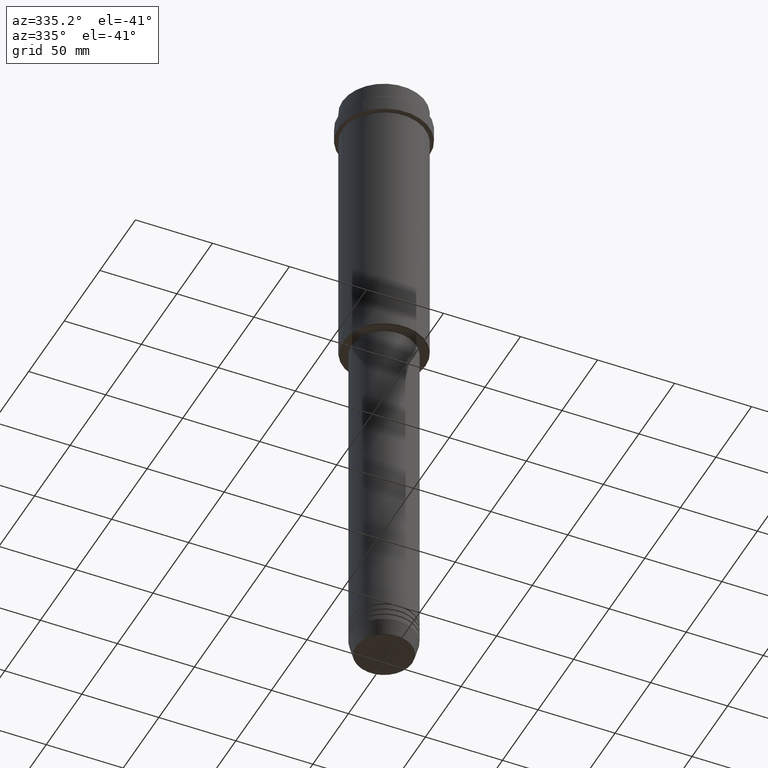
[diagram: clean part render]
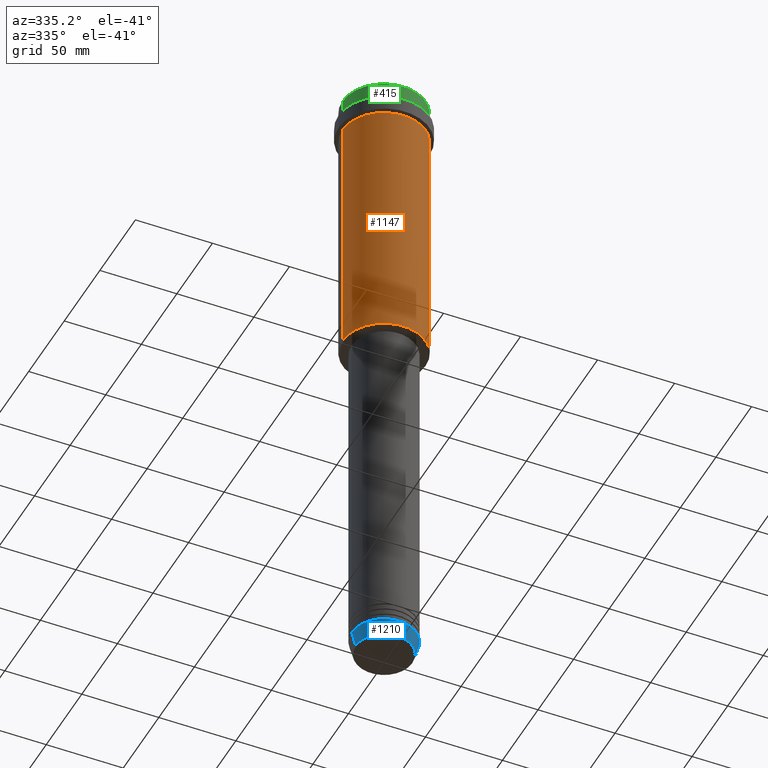
[diagram: same view with three faces highlighted in distinct colors, each labeled with its STEP entity id]
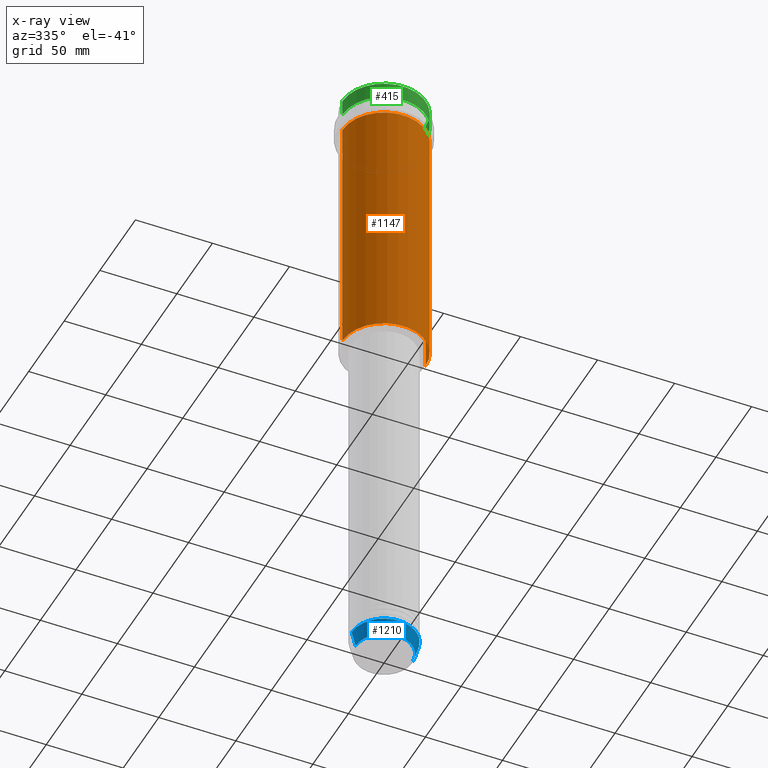
[diagram: x-ray of the same camera — body ghosted, the three highlighted faces saturated]
A machine part, auxiliary view with three faces highlighted in distinct colors.
The next image is the same camera in x-ray (body ghosted, the three faces saturated) — at least one of them is partly hidden behind the body in this view.
Their STEP definitions:

[orange] entity #1147 — the highlighted cylindrical surface (partial cylindrical patch) has radius 27 mm, axis along (-0, -0, 1).
#48 = DIRECTION ( 'NONE',  ( -0.000000000000000000, -0.000000000000000000, 1.000000000000000000 ) ) ;
#158 = CARTESIAN_POINT ( 'NONE',  ( -27.00000000000000355, 3.306546357697854128E-15, -187.5000000000000284 ) ) ;
#229 = CARTESIAN_POINT ( 'NONE',  ( 0.000000000000000000, 0.000000000000000000, 0.000000000000000000 ) ) ;
#239 = EDGE_CURVE ( 'NONE', #942, #1294, #1220, .T. ) ;
#294 = EDGE_LOOP ( 'NONE', ( #669, #822, #425, #713 ) ) ;
#318 = DIRECTION ( 'NONE',  ( -0.000000000000000000, -0.000000000000000000, 1.000000000000000000 ) ) ;
#425 = ORIENTED_EDGE ( 'NONE', *, *, #239, .T. ) ;
#440 = DIRECTION ( 'NONE',  ( -0.000000000000000000, -0.000000000000000000, 1.000000000000000000 ) ) ;
#491 = AXIS2_PLACEMENT_3D ( 'NONE', #1356, #48, #719 ) ;
#557 = EDGE_CURVE ( 'NONE', #861, #942, #863, .T. ) ;
#669 = ORIENTED_EDGE ( 'NONE', *, *, #1095, .F. ) ;
#713 = ORIENTED_EDGE ( 'NONE', *, *, #1233, .F. ) ;
#719 = DIRECTION ( 'NONE',  ( -1.000000000000000000, 0.000000000000000000, 0.000000000000000000 ) ) ;
#803 = VERTEX_POINT ( 'NONE', #1302 ) ;
#805 = CARTESIAN_POINT ( 'NONE',  ( 27.00000000000000355, 0.000000000000000000, -187.5000000000000284 ) ) ;
#807 = DIRECTION ( 'NONE',  ( -0.000000000000000000, -0.000000000000000000, 1.000000000000000000 ) ) ;
#822 = ORIENTED_EDGE ( 'NONE', *, *, #557, .T. ) ;
#859 = VECTOR ( 'NONE', #807, 1000.000000000000000 ) ;
#861 = VERTEX_POINT ( 'NONE', #158 ) ;
#863 = CIRCLE ( 'NONE', #491, 27.00000000000000355 ) ;
#867 = AXIS2_PLACEMENT_3D ( 'NONE', #1297, #318, #980 ) ;
#888 = VECTOR ( 'NONE', #1385, 1000.000000000000000 ) ;
#942 = VERTEX_POINT ( 'NONE', #805 ) ;
#980 = DIRECTION ( 'NONE',  ( 1.000000000000000000, 0.000000000000000000, 0.000000000000000000 ) ) ;
#1059 = CARTESIAN_POINT ( 'NONE',  ( -27.00000000000000355, 3.306546357697854128E-15, 0.000000000000000000 ) ) ;
#1073 = DIRECTION ( 'NONE',  ( 1.000000000000000000, 0.000000000000000000, 0.000000000000000000 ) ) ;
#1095 = EDGE_CURVE ( 'NONE', #861, #803, #1277, .T. ) ;
#1147 = ADVANCED_FACE ( 'NONE', ( #1412 ), #1183, .T. ) ;
#1183 = CYLINDRICAL_SURFACE ( 'NONE', #1205, 27.00000000000000355 ) ;
#1205 = AXIS2_PLACEMENT_3D ( 'NONE', #229, #440, #1073 ) ;
#1220 = LINE ( 'NONE', #1336, #859 ) ;
#1233 = EDGE_CURVE ( 'NONE', #803, #1294, #1273, .T. ) ;
#1248 = CARTESIAN_POINT ( 'NONE',  ( 27.00000000000000355, 0.000000000000000000, -23.00000000000001421 ) ) ;
#1273 = CIRCLE ( 'NONE', #867, 27.00000000000000355 ) ;
#1277 = LINE ( 'NONE', #1059, #888 ) ;
#1294 = VERTEX_POINT ( 'NONE', #1248 ) ;
#1297 = CARTESIAN_POINT ( 'NONE',  ( 0.000000000000000000, 0.000000000000000000, -23.00000000000001421 ) ) ;
#1302 = CARTESIAN_POINT ( 'NONE',  ( -27.00000000000000355, 3.306546357697854128E-15, -23.00000000000001421 ) ) ;
#1336 = CARTESIAN_POINT ( 'NONE',  ( 27.00000000000000355, 0.000000000000000000, 0.000000000000000000 ) ) ;
#1356 = CARTESIAN_POINT ( 'NONE',  ( 0.000000000000000000, 0.000000000000000000, -187.5000000000000284 ) ) ;
#1385 = DIRECTION ( 'NONE',  ( -0.000000000000000000, -0.000000000000000000, 1.000000000000000000 ) ) ;
#1412 = FACE_OUTER_BOUND ( 'NONE', #294, .T. ) ;

[blue] entity #1210 — the highlighted conical surface has half-angle 15 deg.
#52 = DIRECTION ( 'NONE',  ( 0.2588190451025211836, 0.000000000000000000, 0.9659258262890680902 ) ) ;
#71 = VERTEX_POINT ( 'NONE', #284 ) ;
#89 = CONICAL_SURFACE ( 'NONE', #711, 21.00000000000000000, 0.2617993877991499074 ) ;
#175 = CARTESIAN_POINT ( 'NONE',  ( 21.00000000000000000, 0.000000000000000000, -413.0000000000000000 ) ) ;
#284 = CARTESIAN_POINT ( 'NONE',  ( -21.00000000000000000, 2.571758278209441661E-15, -413.0000000000000000 ) ) ;
#295 = EDGE_CURVE ( 'NONE', #1154, #1035, #497, .T. ) ;
#302 = DIRECTION ( 'NONE',  ( 1.000000000000000000, 0.000000000000000000, 0.000000000000000000 ) ) ;
#306 = CARTESIAN_POINT ( 'NONE',  ( 0.000000000000000000, 0.000000000000000000, -422.6294095225512137 ) ) ;
#353 = VECTOR ( 'NONE', #661, 1000.000000000000114 ) ;
#406 = EDGE_CURVE ( 'NONE', #513, #1154, #416, .T. ) ;
#416 = CIRCLE ( 'NONE', #608, 18.41980749484383750 ) ;
#423 = DIRECTION ( 'NONE',  ( -0.000000000000000000, -0.000000000000000000, 1.000000000000000000 ) ) ;
#497 = LINE ( 'NONE', #175, #1176 ) ;
#513 = VERTEX_POINT ( 'NONE', #1354 ) ;
#551 = DIRECTION ( 'NONE',  ( 1.000000000000000000, 0.000000000000000000, 0.000000000000000000 ) ) ;
#590 = CIRCLE ( 'NONE', #613, 21.00000000000000000 ) ;
#592 = CARTESIAN_POINT ( 'NONE',  ( 0.000000000000000000, 0.000000000000000000, -413.0000000000000000 ) ) ;
#608 = AXIS2_PLACEMENT_3D ( 'NONE', #306, #423, #302 ) ;
#611 = ORIENTED_EDGE ( 'NONE', *, *, #295, .T. ) ;
#613 = AXIS2_PLACEMENT_3D ( 'NONE', #592, #816, #1217 ) ;
#661 = DIRECTION ( 'NONE',  ( -0.2588190451025211836, 3.169619151431770488E-17, 0.9659258262890680902 ) ) ;
#711 = AXIS2_PLACEMENT_3D ( 'NONE', #874, #879, #551 ) ;
#747 = ORIENTED_EDGE ( 'NONE', *, *, #1358, .F. ) ;
#751 = ORIENTED_EDGE ( 'NONE', *, *, #406, .T. ) ;
#816 = DIRECTION ( 'NONE',  ( -0.000000000000000000, -0.000000000000000000, 1.000000000000000000 ) ) ;
#874 = CARTESIAN_POINT ( 'NONE',  ( 0.000000000000000000, 0.000000000000000000, -413.0000000000000000 ) ) ;
#879 = DIRECTION ( 'NONE',  ( -0.000000000000000000, -0.000000000000000000, 1.000000000000000000 ) ) ;
#965 = CARTESIAN_POINT ( 'NONE',  ( 18.41980749484383750, 0.000000000000000000, -422.6294095225512137 ) ) ;
#973 = FACE_OUTER_BOUND ( 'NONE', #1027, .T. ) ;
#983 = CARTESIAN_POINT ( 'NONE',  ( -21.00000000000000000, 2.571758278209441661E-15, -413.0000000000000000 ) ) ;
#1027 = EDGE_LOOP ( 'NONE', ( #1268, #751, #611, #747 ) ) ;
#1033 = CARTESIAN_POINT ( 'NONE',  ( 21.00000000000000000, 0.000000000000000000, -413.0000000000000000 ) ) ;
#1035 = VERTEX_POINT ( 'NONE', #1033 ) ;
#1154 = VERTEX_POINT ( 'NONE', #965 ) ;
#1176 = VECTOR ( 'NONE', #52, 1000.000000000000114 ) ;
#1184 = EDGE_CURVE ( 'NONE', #513, #71, #1189, .T. ) ;
#1189 = LINE ( 'NONE', #983, #353 ) ;
#1210 = ADVANCED_FACE ( 'NONE', ( #973 ), #89, .T. ) ;
#1217 = DIRECTION ( 'NONE',  ( 1.000000000000000000, 0.000000000000000000, 0.000000000000000000 ) ) ;
#1268 = ORIENTED_EDGE ( 'NONE', *, *, #1184, .F. ) ;
#1354 = CARTESIAN_POINT ( 'NONE',  ( -18.41980749484383750, 2.413767053578267458E-15, -422.6294095225512137 ) ) ;
#1358 = EDGE_CURVE ( 'NONE', #71, #1035, #590, .T. ) ;

[green] entity #415 — the highlighted cylindrical surface (partial cylindrical patch) has radius 27 mm, axis along (-0, -0, 1).
#25 = CARTESIAN_POINT ( 'NONE',  ( 27.00000000000000355, 0.000000000000000000, 0.000000000000000000 ) ) ;
#61 = ORIENTED_EDGE ( 'NONE', *, *, #899, .T. ) ;
#66 = CARTESIAN_POINT ( 'NONE',  ( 0.000000000000000000, 0.000000000000000000, -0.4999999999999796274 ) ) ;
#67 = VERTEX_POINT ( 'NONE', #70 ) ;
#70 = CARTESIAN_POINT ( 'NONE',  ( -27.00000000000000355, 3.306546357697854128E-15, -0.4999999999999796274 ) ) ;
#198 = ORIENTED_EDGE ( 'NONE', *, *, #1389, .T. ) ;
#206 = DIRECTION ( 'NONE',  ( -0.000000000000000000, -0.000000000000000000, 1.000000000000000000 ) ) ;
#231 = CARTESIAN_POINT ( 'NONE',  ( -27.00000000000000355, 3.306546357697854128E-15, -11.00000000000000178 ) ) ;
#258 = CARTESIAN_POINT ( 'NONE',  ( 0.000000000000000000, 0.000000000000000000, -11.00000000000000178 ) ) ;
#292 = AXIS2_PLACEMENT_3D ( 'NONE', #258, #1204, #1209 ) ;
#307 = ORIENTED_EDGE ( 'NONE', *, *, #599, .T. ) ;
#362 = DIRECTION ( 'NONE',  ( -0.000000000000000000, -0.000000000000000000, 1.000000000000000000 ) ) ;
#370 = LINE ( 'NONE', #1017, #732 ) ;
#415 = ADVANCED_FACE ( 'NONE', ( #878 ), #860, .T. ) ;
#457 = CARTESIAN_POINT ( 'NONE',  ( 27.00000000000000355, 0.000000000000000000, -11.00000000000000178 ) ) ;
#475 = EDGE_LOOP ( 'NONE', ( #703, #307, #61, #198 ) ) ;
#500 = DIRECTION ( 'NONE',  ( 0.000000000000000000, 0.000000000000000000, -1.000000000000000000 ) ) ;
#578 = LINE ( 'NONE', #25, #930 ) ;
#599 = EDGE_CURVE ( 'NONE', #824, #943, #686, .T. ) ;
#626 = DIRECTION ( 'NONE',  ( 1.000000000000000000, 0.000000000000000000, 0.000000000000000000 ) ) ;
#640 = CIRCLE ( 'NONE', #1295, 27.00000000000000355 ) ;
#641 = EDGE_CURVE ( 'NONE', #824, #67, #370, .T. ) ;
#650 = DIRECTION ( 'NONE',  ( 1.000000000000000000, 0.000000000000000000, 0.000000000000000000 ) ) ;
#686 = CIRCLE ( 'NONE', #292, 27.00000000000000355 ) ;
#703 = ORIENTED_EDGE ( 'NONE', *, *, #641, .F. ) ;
#718 = DIRECTION ( 'NONE',  ( -0.000000000000000000, -0.000000000000000000, 1.000000000000000000 ) ) ;
#732 = VECTOR ( 'NONE', #718, 1000.000000000000000 ) ;
#824 = VERTEX_POINT ( 'NONE', #231 ) ;
#860 = CYLINDRICAL_SURFACE ( 'NONE', #1308, 27.00000000000000355 ) ;
#871 = CARTESIAN_POINT ( 'NONE',  ( 0.000000000000000000, 0.000000000000000000, 0.000000000000000000 ) ) ;
#878 = FACE_OUTER_BOUND ( 'NONE', #475, .T. ) ;
#899 = EDGE_CURVE ( 'NONE', #943, #1044, #578, .T. ) ;
#930 = VECTOR ( 'NONE', #362, 1000.000000000000000 ) ;
#943 = VERTEX_POINT ( 'NONE', #457 ) ;
#1017 = CARTESIAN_POINT ( 'NONE',  ( -27.00000000000000355, 3.306546357697854128E-15, 0.000000000000000000 ) ) ;
#1044 = VERTEX_POINT ( 'NONE', #1152 ) ;
#1152 = CARTESIAN_POINT ( 'NONE',  ( 27.00000000000000355, 0.000000000000000000, -0.4999999999999796274 ) ) ;
#1204 = DIRECTION ( 'NONE',  ( -0.000000000000000000, -0.000000000000000000, 1.000000000000000000 ) ) ;
#1209 = DIRECTION ( 'NONE',  ( 1.000000000000000000, 0.000000000000000000, 0.000000000000000000 ) ) ;
#1295 = AXIS2_PLACEMENT_3D ( 'NONE', #66, #500, #626 ) ;
#1308 = AXIS2_PLACEMENT_3D ( 'NONE', #871, #206, #650 ) ;
#1389 = EDGE_CURVE ( 'NONE', #1044, #67, #640, .T. ) ;